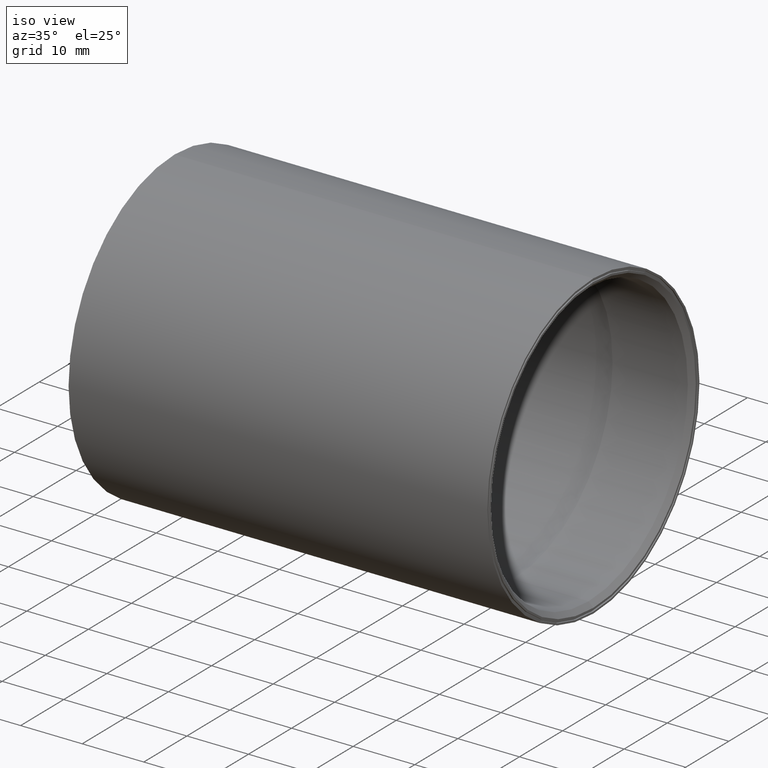
[diagram: clean part render]
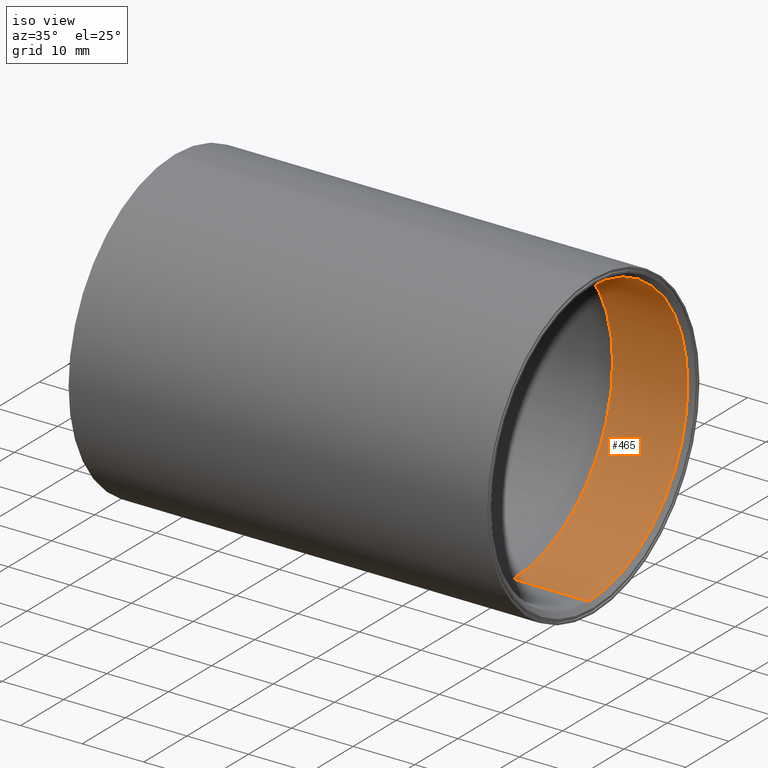
[diagram: same view with one face highlighted and labeled with its STEP entity id]
A machine part, iso view. The second image highlights one B-rep face of the part: STEP entity #465.
In plain terms, the highlighted cylindrical surface (partial cylindrical patch) has radius 22.9997 mm, axis along (-1, -0, -0).
Its self-contained STEP definition (entity closure, byte-faithful):
#14 = VECTOR ( 'NONE', #604, 39.37007874015748100 ) ;
#21 = ORIENTED_EDGE ( 'NONE', *, *, #451, .T. ) ;
#22 = CARTESIAN_POINT ( 'NONE',  ( 0.8274999999999999000, 1.116877880822386100E-016, -0.9054999999999999700 ) ) ;
#58 = AXIS2_PLACEMENT_3D ( 'NONE', #624, #477, #145 ) ;
#68 = DIRECTION ( 'NONE',  ( 0.0000000000000000000, 0.0000000000000000000, 1.000000000000000000 ) ) ;
#95 = DIRECTION ( 'NONE',  ( -1.000000000000000000, -0.0000000000000000000, -0.0000000000000000000 ) ) ;
#96 = DIRECTION ( 'NONE',  ( 1.000000000000000000, -0.0000000000000000000, -0.0000000000000000000 ) ) ;
#98 = CARTESIAN_POINT ( 'NONE',  ( 1.308500000000000400, 0.0000000000000000000, 0.9054999999999999700 ) ) ;
#128 = LINE ( 'NONE', #566, #567 ) ;
#145 = DIRECTION ( 'NONE',  ( 0.0000000000000000000, 0.0000000000000000000, 1.000000000000000000 ) ) ;
#148 = EDGE_CURVE ( 'NONE', #426, #637, #128, .T. ) ;
#206 = CARTESIAN_POINT ( 'NONE',  ( 0.8274999999999999000, 0.0000000000000000000, 0.0000000000000000000 ) ) ;
#226 = FACE_OUTER_BOUND ( 'NONE', #260, .T. ) ;
#260 = EDGE_LOOP ( 'NONE', ( #448, #333, #569, #21 ) ) ;
#267 = AXIS2_PLACEMENT_3D ( 'NONE', #409, #96, #476 ) ;
#322 = DIRECTION ( 'NONE',  ( -1.000000000000000000, -0.0000000000000000000, -0.0000000000000000000 ) ) ;
#324 = EDGE_CURVE ( 'NONE', #450, #575, #442, .T. ) ;
#333 = ORIENTED_EDGE ( 'NONE', *, *, #522, .T. ) ;
#404 = CARTESIAN_POINT ( 'NONE',  ( 1.308500000000000400, 1.108917676627928300E-016, -0.9054999999999999700 ) ) ;
#409 = CARTESIAN_POINT ( 'NONE',  ( 1.308500000000000400, 0.0000000000000000000, 0.0000000000000000000 ) ) ;
#426 = VERTEX_POINT ( 'NONE', #404 ) ;
#442 = LINE ( 'NONE', #538, #14 ) ;
#448 = ORIENTED_EDGE ( 'NONE', *, *, #148, .F. ) ;
#450 = VERTEX_POINT ( 'NONE', #98 ) ;
#451 = EDGE_CURVE ( 'NONE', #575, #637, #489, .T. ) ;
#465 = ADVANCED_FACE ( 'NONE', ( #226 ), #469, .F. ) ;
#469 = CYLINDRICAL_SURFACE ( 'NONE', #58, 0.9054999999999999700 ) ;
#476 = DIRECTION ( 'NONE',  ( 0.0000000000000000000, 0.0000000000000000000, 1.000000000000000000 ) ) ;
#477 = DIRECTION ( 'NONE',  ( -1.000000000000000000, -0.0000000000000000000, -0.0000000000000000000 ) ) ;
#478 = CARTESIAN_POINT ( 'NONE',  ( 0.8274999999999999000, 0.0000000000000000000, 0.9054999999999999700 ) ) ;
#489 = CIRCLE ( 'NONE', #613, 0.9054999999999999700 ) ;
#522 = EDGE_CURVE ( 'NONE', #426, #450, #583, .T. ) ;
#538 = CARTESIAN_POINT ( 'NONE',  ( 0.0000000000000000000, 0.0000000000000000000, 0.9054999999999999700 ) ) ;
#566 = CARTESIAN_POINT ( 'NONE',  ( 0.0000000000000000000, 1.108917676627928300E-016, -0.9054999999999999700 ) ) ;
#567 = VECTOR ( 'NONE', #95, 39.37007874015748100 ) ;
#569 = ORIENTED_EDGE ( 'NONE', *, *, #324, .T. ) ;
#575 = VERTEX_POINT ( 'NONE', #478 ) ;
#583 = CIRCLE ( 'NONE', #267, 0.9054999999999999700 ) ;
#604 = DIRECTION ( 'NONE',  ( -1.000000000000000000, -0.0000000000000000000, -0.0000000000000000000 ) ) ;
#613 = AXIS2_PLACEMENT_3D ( 'NONE', #206, #322, #68 ) ;
#624 = CARTESIAN_POINT ( 'NONE',  ( 0.0000000000000000000, 0.0000000000000000000, 0.0000000000000000000 ) ) ;
#637 = VERTEX_POINT ( 'NONE', #22 ) ;